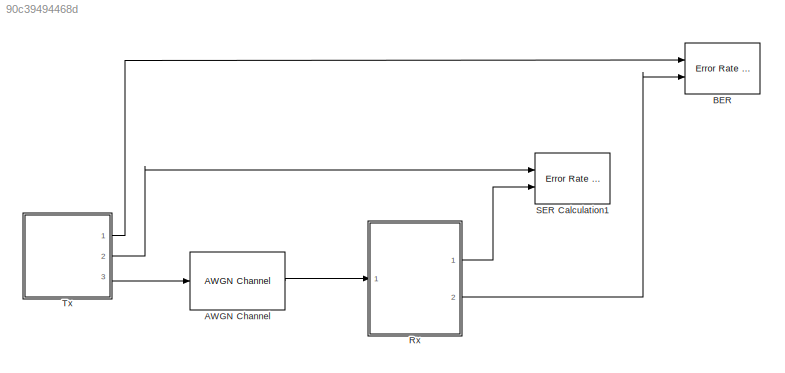
MODEL slx_90c39494468d
KIND model
BLOCK [Reference] AWGN Channel  REF=commchan3/AWGN
Channel
  EbNodB = 10
  EsNodB = SNR
  InputProcessing = Columns as channels (frame based)
  Ports = [1, 1]
  Ps = 1
  SNRdB = 10
  SourceBlock = commchan3/AWGN\nChannel
  SourceType = AWGN Channel
  Tsym = 1/SymbolRate
  UserDataPersistent = on
  bitsPerSym = 1
  noiseMode = Signal to noise ratio  (Es/No)
  seed = 67
  variance = 1
BLOCK [Reference] BER  REF=commsink2/Error Rate
Calculation
  N = 0
  PMode = Workspace
  Ports = [2]
  RsMode2 = off
  SourceBlock = commsink2/Error Rate\nCalculation
  SourceType = Error Rate Calculation
  WsName = ErrorVec
  cp_mode = Entire frame
  maxBits = 1e6
  numErr = 100
  st_delay = 0
  stop = off
  subframe = []
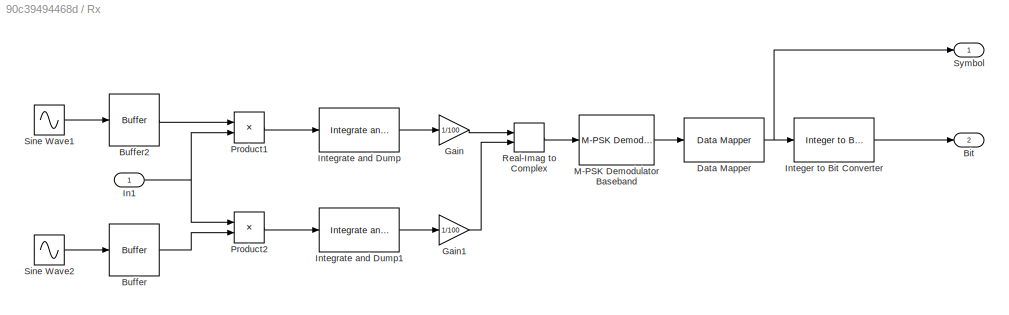
BLOCK [SubSystem] Rx
  Ports = [1, 2]
  RequestExecContextInheritance = off
BLOCK [Outport] Rx/Bit
  IconDisplay = Port number
  Port = 2
BLOCK [Buffer] Rx/Buffer
  N = 100*SymbolRate
BLOCK [Buffer] Rx/Buffer2
  N = 100*SymbolRate
BLOCK [Reference] Rx/Data Mapper  REF=commutil2/Data Mapper
  M = 16
  MapMode = Gray to Binary
  MapVec = [0 1 3 2 7 6 4 5]
  Ports = [1, 1]
  SourceBlock = commutil2/Data Mapper
  SourceType = Data Mapper
BLOCK [Gain] Rx/Gain
  Gain = 1/100
  OutDataTypeStr = Inherit: Inherit via internal rule
  ParamDataTypeStr = Inherit: Inherit via internal rule
  SaturateOnIntegerOverflow = off
BLOCK [Gain] Rx/Gain1
  Gain = 1/100
  OutDataTypeStr = Inherit: Inherit via internal rule
  ParamDataTypeStr = Inherit: Inherit via internal rule
  SaturateOnIntegerOverflow = off
BLOCK [Inport] Rx/In1
  IconDisplay = Port number
BLOCK [Reference] Rx/Integer to Bit Converter  REF=commutil2/Integer to Bit
Converter
  Ports = [1, 1]
  SourceBlock = commutil2/Integer to Bit\nConverter
  SourceType = Integer to Bit Converter
  bitOrder = MSB first
  nbits = 4
  outDtype = Inherit via internal rule
  signedInputValues = Unsigned
BLOCK [Reference] Rx/Integrate and Dump  REF=commfilt2/Integrate
and Dump
  LockScale = off
  Ports = [1, 1]
  SourceBlock = commfilt2/Integrate\nand Dump
  SourceType = Integrate and Dump
  accumFracLength = 30
  accumMode = Inherit via internal rule
  accumWordLength = 32
  nodump = off
  obssamples = 100
  offsetsamples = 0
  outputFracLength = 30
  outputMode = Same as accumulator
  outputWordLength = 32
  overflowMode = off
  roundingMode = Floor
BLOCK [Reference] Rx/Integrate and Dump1  REF=commfilt2/Integrate
and Dump
  LockScale = off
  Ports = [1, 1]
  SourceBlock = commfilt2/Integrate\nand Dump
  SourceType = Integrate and Dump
  accumFracLength = 30
  accumMode = Inherit via internal rule
  accumWordLength = 32
  nodump = off
  obssamples = 100
  offsetsamples = 0
  outputFracLength = 30
  outputMode = Same as accumulator
  outputWordLength = 32
  overflowMode = off
  roundingMode = Floor
BLOCK [Reference] Rx/M-PSK Demodulator Baseband  REF=commdigbbndpm3/M-PSK
Demodulator
Baseband
  Dec = Gray
  DecType = Hard decision
  M = 16
  Mapping = [0:7]
  OutType = Integer
  Ph = 0
  Ports = [1, 1]
  SourceBlock = commdigbbndpm3/M-PSK\nDemodulator\nBaseband
  SourceType = M-PSK Demodulator Baseband
  VarSource = Dialog
  Variance = 1
  derotateFactorDTMode = Same word length as input
  derotateFactorWordLen = 16
  outDtype1 = Inherit via internal rule
  outDtype2 = Inherit via internal rule
BLOCK [Product] Rx/Product1
  InputSameDT = off
  OutDataTypeStr = Inherit: Inherit via internal rule
  Ports = [2, 1]
  RndMeth = Floor
  SaturateOnIntegerOverflow = off
BLOCK [Product] Rx/Product2
  InputSameDT = off
  OutDataTypeStr = Inherit: Inherit via internal rule
  Ports = [2, 1]
  RndMeth = Floor
  SaturateOnIntegerOverflow = off
BLOCK [RealImagToComplex] Rx/Real-Imag to Complex
  Ports = [2, 1]
BLOCK [Sin] Rx/Sine Wave1
  Amplitude = sqrt(2)
  Frequency = 2*pi*SymbolRate
  Phase = pi/2
  Ports = [0, 1]
  SampleTime = 1/(100*SymbolRate)
BLOCK [Sin] Rx/Sine Wave2
  Amplitude = sqrt(2)
  Frequency = 2*pi*SymbolRate
  Phase = pi
  Ports = [0, 1]
  SampleTime = 1/(100*SymbolRate)
BLOCK [Outport] Rx/Symbol
  IconDisplay = Port number
BLOCK [Reference] SER Calculation1  REF=commsink2/Error Rate
Calculation
  N = 0
  PMode = Workspace
  Ports = [2]
  RsMode2 = off
  SourceBlock = commsink2/Error Rate\nCalculation
  SourceType = Error Rate Calculation
  WsName = SER
  cp_mode = Entire frame
  maxBits = 1e6
  numErr = 100
  st_delay = 0
  stop = off
  subframe = []
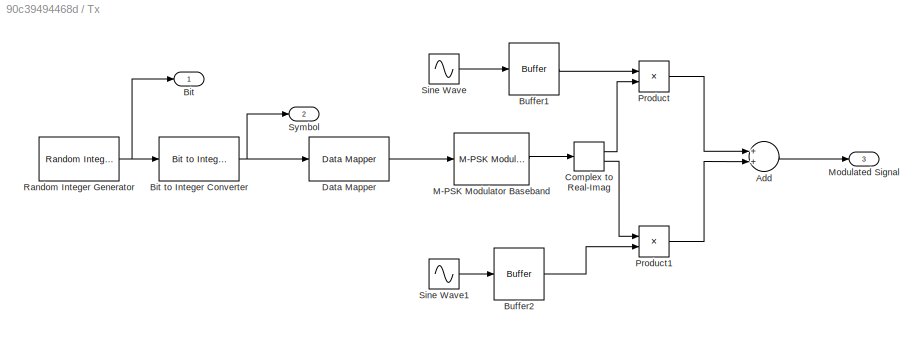
BLOCK [SubSystem] Tx
  Ports = [0, 3]
  RequestExecContextInheritance = off
BLOCK [Sum] Tx/Add
  InputSameDT = off
  OutDataTypeStr = Inherit: Inherit via internal rule
  Ports = [2, 1]
  SaturateOnIntegerOverflow = off
BLOCK [Outport] Tx/Bit
  IconDisplay = Port number
BLOCK [Reference] Tx/Bit to Integer Converter  REF=commutil2/Bit to Integer
Converter
  Ports = [1, 1]
  SourceBlock = commutil2/Bit to Integer\nConverter
  SourceType = Bit to Integer Converter
  bitOrder = MSB first
  nbits = 4
  outDtype = Inherit via internal rule
  outDtypeSigned = Inherit via internal rule
  signedOutputValues = Unsigned
BLOCK [Buffer] Tx/Buffer1
  N = 100*SymbolRate
BLOCK [Buffer] Tx/Buffer2
  N = 100*SymbolRate
BLOCK [ComplexToRealImag] Tx/Complex to Real-Imag
  Ports = [1, 2]
BLOCK [Reference] Tx/Data Mapper  REF=commutil2/Data Mapper
  M = 16
  MapMode = Binary to Gray
  MapVec = [0 1 3 2 7 6 4 5]
  Ports = [1, 1]
  SourceBlock = commutil2/Data Mapper
  SourceType = Data Mapper
BLOCK [Reference] Tx/M-PSK Modulator Baseband  REF=commdigbbndpm3/M-PSK
Modulator
Baseband
  Enc = Gray
  InType = Integer
  M = 16
  Mapping = [0:7]
  Ph = pi/8
  Ports = [1, 1]
  SourceBlock = commdigbbndpm3/M-PSK\nModulator\nBaseband
  SourceType = M-PSK Modulator Baseband
  outDtype = double
  outFracLen = 15
  outFracLenMode = Best precision
  outUDDataType = sfix(16)
  outWordLen = 16
BLOCK [Outport] Tx/Modulated Signal
  IconDisplay = Port number
  Port = 3
BLOCK [Product] Tx/Product
  InputSameDT = off
  OutDataTypeStr = Inherit: Inherit via internal rule
  Ports = [2, 1]
  RndMeth = Floor
  SaturateOnIntegerOverflow = off
BLOCK [Product] Tx/Product1
  InputSameDT = off
  OutDataTypeStr = Inherit: Inherit via internal rule
  Ports = [2, 1]
  RndMeth = Floor
  SaturateOnIntegerOverflow = off
BLOCK [Reference] Tx/Random Integer Generator  REF=commrandsrc2/Random Integer
Generator
  Ports = [0, 1]
  SourceBlock = commrandsrc2/Random Integer\nGenerator
  SourceType = Random Integer Generator
  Ts = 1/(4*SymbolRate)
  frameBased = on
  mul = 2
  orient = off
  outDataType = double
  sampPerFrame = 4*SymbolRate
  seed = 37
BLOCK [Sin] Tx/Sine Wave
  Amplitude = sqrt(2)
  Frequency = 2*pi*SymbolRate
  Phase = pi/2
  Ports = [0, 1]
  SampleTime = 1/(100*SymbolRate)
BLOCK [Sin] Tx/Sine Wave1
  Amplitude = sqrt(2)
  Frequency = 2*pi*SymbolRate
  Phase = pi
  Ports = [0, 1]
  SampleTime = 1/(100*SymbolRate)
BLOCK [Outport] Tx/Symbol
  IconDisplay = Port number
  Port = 2
LINE AWGN Channel:1 -> Rx:1
LINE Rx/Buffer2:1 -> Rx/Product1:1
LINE Rx/Buffer:1 -> Rx/Product2:2
NET Rx/Data Mapper:1 -> Rx/Integer to Bit Converter:1, Rx/Symbol:1
LINE Rx/Gain1:1 -> Rx/Real-Imag to Complex:2
LINE Rx/Gain:1 -> Rx/Real-Imag to Complex:1
NET Rx/In1:1 -> Rx/Product1:2, Rx/Product2:1
LINE Rx/Integer to Bit Converter:1 -> Rx/Bit:1
LINE Rx/Integrate and Dump1:1 -> Rx/Gain1:1
LINE Rx/Integrate and Dump:1 -> Rx/Gain:1
LINE Rx/M-PSK Demodulator Baseband:1 -> Rx/Data Mapper:1
LINE Rx/Product1:1 -> Rx/Integrate and Dump:1
LINE Rx/Product2:1 -> Rx/Integrate and Dump1:1
LINE Rx/Real-Imag to Complex:1 -> Rx/M-PSK Demodulator Baseband:1
LINE Rx/Sine Wave1:1 -> Rx/Buffer2:1
LINE Rx/Sine Wave2:1 -> Rx/Buffer:1
LINE Rx:1 -> SER Calculation1:2
LINE Rx:2 -> BER:2
LINE Tx/Add:1 -> Tx/Modulated Signal:1
NET Tx/Bit to Integer Converter:1 -> Tx/Data Mapper:1, Tx/Symbol:1
LINE Tx/Buffer1:1 -> Tx/Product:1
LINE Tx/Buffer2:1 -> Tx/Product1:2
LINE Tx/Complex to Real-Imag:1 -> Tx/Product:2
LINE Tx/Complex to Real-Imag:2 -> Tx/Product1:1
LINE Tx/Data Mapper:1 -> Tx/M-PSK Modulator Baseband:1
LINE Tx/M-PSK Modulator Baseband:1 -> Tx/Complex to Real-Imag:1
LINE Tx/Product1:1 -> Tx/Add:2
LINE Tx/Product:1 -> Tx/Add:1
NET Tx/Random Integer Generator:1 -> Tx/Bit to Integer Converter:1, Tx/Bit:1
LINE Tx/Sine Wave1:1 -> Tx/Buffer2:1
LINE Tx/Sine Wave:1 -> Tx/Buffer1:1
LINE Tx:1 -> BER:1
LINE Tx:2 -> SER Calculation1:1
LINE Tx:3 -> AWGN Channel:1
note: NET lines group one-source signal fan-out (src -> all destinations, sorted); 1:1 wires keep LINE
